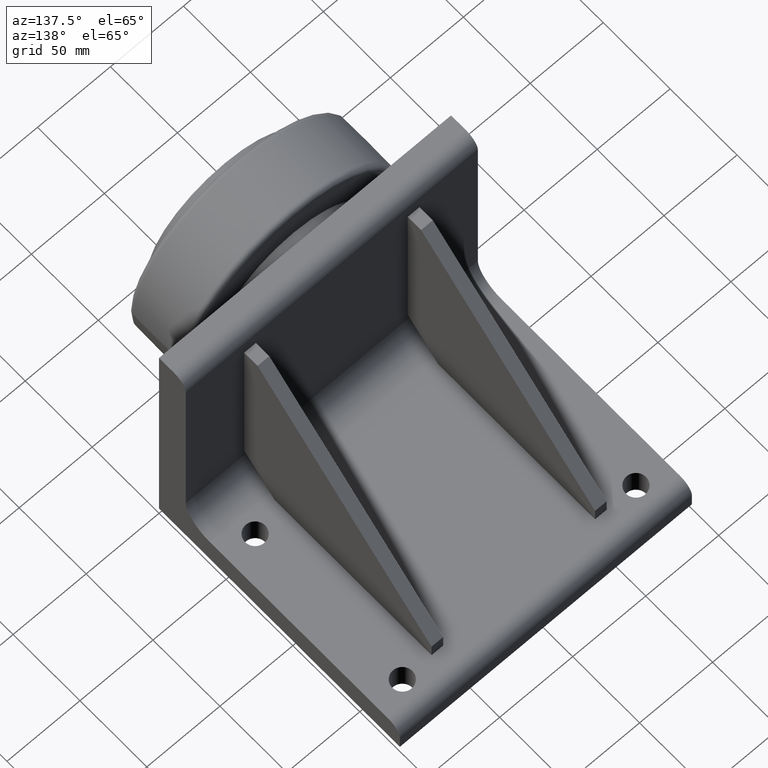
[diagram: clean part render]
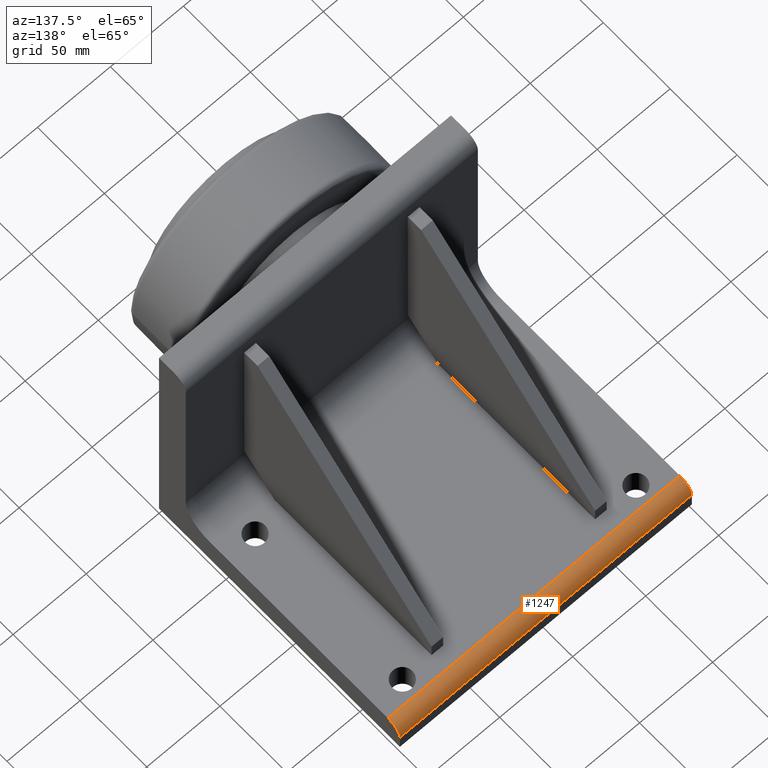
[diagram: same view with one face highlighted and labeled with its STEP entity id]
A machine part, auxiliary view. The second image highlights one B-rep face of the part: STEP entity #1247.
In plain terms, the highlighted cylindrical surface (edge-blend (fillet) strip) has radius 9 mm, axis along (1, 0, 0).
Its self-contained STEP definition (entity closure, byte-faithful):
#40=CYLINDRICAL_SURFACE('',#1391,9.);
#121=CIRCLE('',#1390,9.);
#122=CIRCLE('',#1392,9.);
#175=FACE_OUTER_BOUND('',#246,.T.);
#246=EDGE_LOOP('',(#1052,#1053,#1054,#1055));
#358=LINE('',#2151,#469);
#359=LINE('',#2152,#470);
#469=VECTOR('',#1716,10.);
#470=VECTOR('',#1717,10.);
#598=VERTEX_POINT('',#2140);
#599=VERTEX_POINT('',#2142);
#601=VERTEX_POINT('',#2148);
#602=VERTEX_POINT('',#2149);
#764=EDGE_CURVE('',#599,#598,#121,.T.);
#767=EDGE_CURVE('',#601,#602,#122,.T.);
#768=EDGE_CURVE('',#602,#599,#358,.T.);
#769=EDGE_CURVE('',#598,#601,#359,.T.);
#1052=ORIENTED_EDGE('',*,*,#767,.T.);
#1053=ORIENTED_EDGE('',*,*,#768,.T.);
#1054=ORIENTED_EDGE('',*,*,#764,.T.);
#1055=ORIENTED_EDGE('',*,*,#769,.T.);
#1247=ADVANCED_FACE('',(#175),#40,.T.);
#1390=AXIS2_PLACEMENT_3D('',#2143,#1708,#1709);
#1391=AXIS2_PLACEMENT_3D('',#2147,#1712,#1713);
#1392=AXIS2_PLACEMENT_3D('',#2150,#1714,#1715);
#1708=DIRECTION('center_axis',(1.,0.,0.));
#1709=DIRECTION('ref_axis',(0.,0.707106781186547,0.707106781186548));
#1712=DIRECTION('center_axis',(1.,0.,0.));
#1713=DIRECTION('ref_axis',(0.,0.707106781186547,0.707106781186548));
#1714=DIRECTION('center_axis',(-1.,0.,0.));
#1715=DIRECTION('ref_axis',(0.,0.707106781186547,0.707106781186548));
#1716=DIRECTION('',(-1.,0.,0.));
#1717=DIRECTION('',(1.,0.,0.));
#2140=CARTESIAN_POINT('',(0.,171.,20.));
#2142=CARTESIAN_POINT('',(0.,180.,11.));
#2143=CARTESIAN_POINT('Origin',(0.,171.,11.));
#2147=CARTESIAN_POINT('Origin',(0.,171.,11.));
#2148=CARTESIAN_POINT('',(200.,171.,20.));
#2149=CARTESIAN_POINT('',(200.,180.,11.));
#2150=CARTESIAN_POINT('Origin',(200.,171.,11.));
#2151=CARTESIAN_POINT('',(0.,180.,11.));
#2152=CARTESIAN_POINT('',(0.,171.,20.));